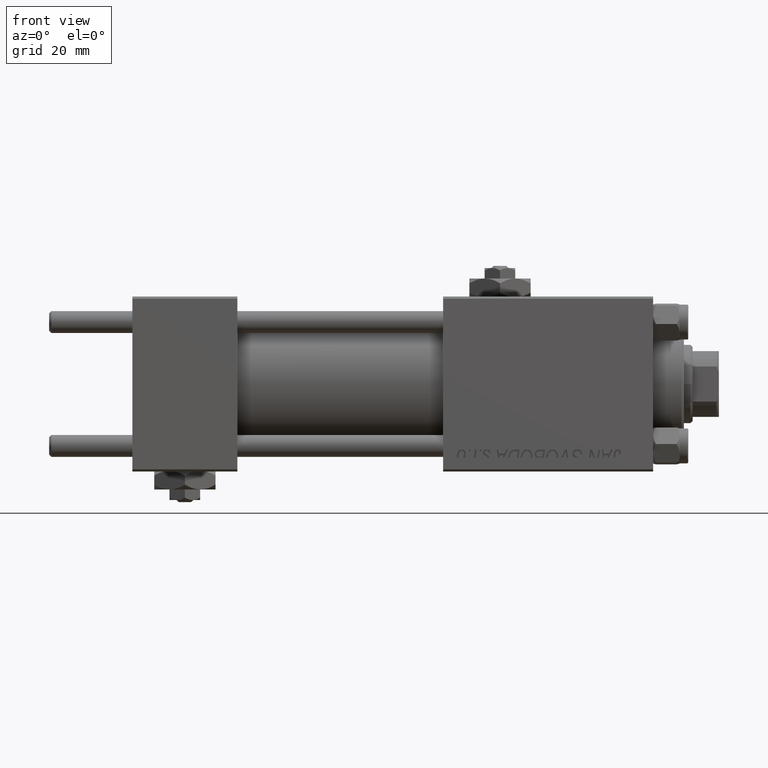
[diagram: clean part render]
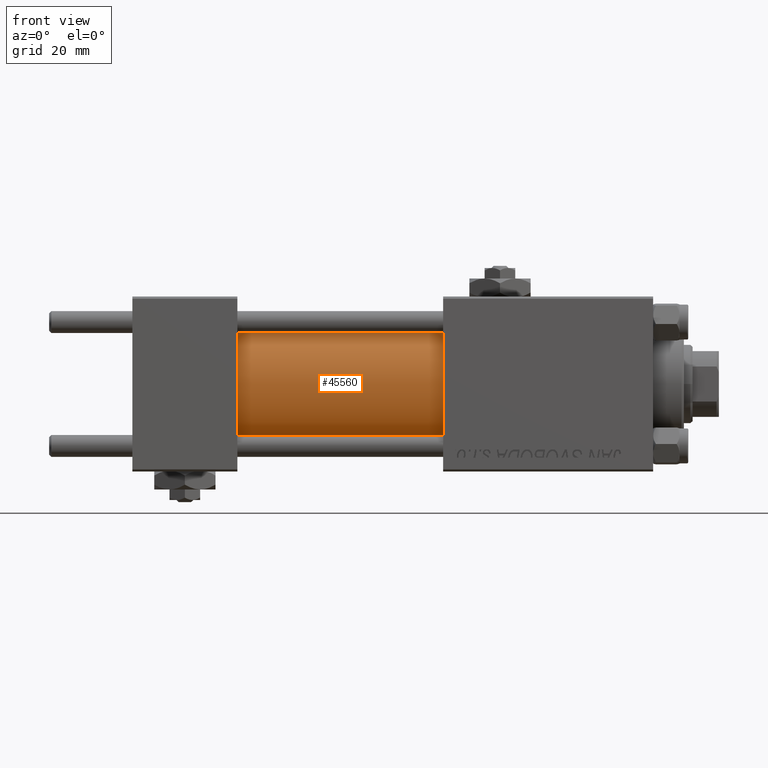
[diagram: same view with one face highlighted and labeled with its STEP entity id]
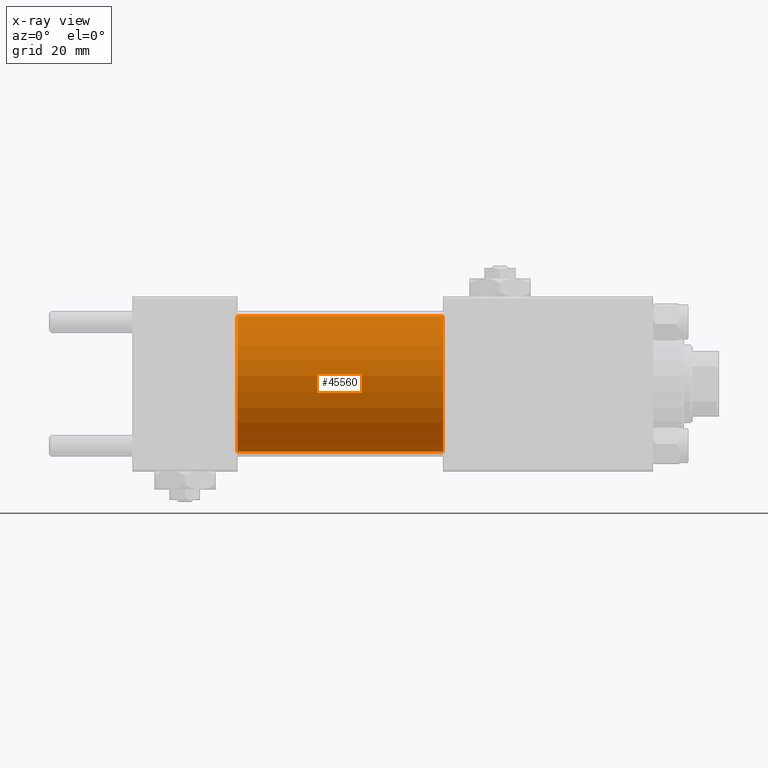
[diagram: x-ray of the same camera — body ghosted, the highlighted face saturated]
A machine part, front view. The second image highlights one B-rep face of the part: STEP entity #45560.
The next image is the same camera in x-ray: the body ghosted, the highlighted face saturated — about 0% of this face is hidden behind the body in this view.
In plain terms, the highlighted cylindrical surface (partial cylindrical patch) has radius 15.5 mm, axis along (-1, -0, -0).
Its self-contained STEP definition (entity closure, byte-faithful):
#355 = VERTEX_POINT ( 'NONE', #8654 ) ;
#4490 = CARTESIAN_POINT ( 'NONE',  ( 71.00000000000001421, 0.000000000000000000, 15.50000000000000000 ) ) ;
#8654 = CARTESIAN_POINT ( 'NONE',  ( 24.00000000000000000, 0.000000000000000000, 15.50000000000000000 ) ) ;
#10628 = DIRECTION ( 'NONE',  ( -1.000000000000000000, -0.000000000000000000, -0.000000000000000000 ) ) ;
#10916 = EDGE_CURVE ( 'NONE', #355, #48154, #48303, .T. ) ;
#11502 = ORIENTED_EDGE ( 'NONE', *, *, #10916, .T. ) ;
#13120 = CARTESIAN_POINT ( 'NONE',  ( 71.00000000000001421, 1.898202538678397557E-15, -15.50000000000000000 ) ) ;
#13175 = DIRECTION ( 'NONE',  ( -1.000000000000000000, -0.000000000000000000, -0.000000000000000000 ) ) ;
#14039 = VECTOR ( 'NONE', #10628, 1000.000000000000000 ) ;
#14061 = LINE ( 'NONE', #30604, #14039 ) ;
#16384 = DIRECTION ( 'NONE',  ( -1.000000000000000000, -0.000000000000000000, -0.000000000000000000 ) ) ;
#16867 = CARTESIAN_POINT ( 'NONE',  ( 71.00000000000001421, 0.000000000000000000, 0.000000000000000000 ) ) ;
#17345 = AXIS2_PLACEMENT_3D ( 'NONE', #16867, #13175, #45191 ) ;
#19839 = AXIS2_PLACEMENT_3D ( 'NONE', #29384, #21493, #28871 ) ;
#20323 = LINE ( 'NONE', #36321, #26723 ) ;
#21493 = DIRECTION ( 'NONE',  ( 1.000000000000000000, 0.000000000000000000, 0.000000000000000000 ) ) ;
#22609 = EDGE_CURVE ( 'NONE', #50276, #31149, #28512, .T. ) ;
#22862 = CARTESIAN_POINT ( 'NONE',  ( 24.00000000000000000, 1.898202538678397557E-15, -15.50000000000000000 ) ) ;
#26723 = VECTOR ( 'NONE', #16384, 1000.000000000000000 ) ;
#27182 = DIRECTION ( 'NONE',  ( 1.000000000000000000, 0.000000000000000000, 0.000000000000000000 ) ) ;
#28512 = CIRCLE ( 'NONE', #28556, 15.50000000000000000 ) ;
#28556 = AXIS2_PLACEMENT_3D ( 'NONE', #43439, #27182, #38721 ) ;
#28698 = CYLINDRICAL_SURFACE ( 'NONE', #17345, 15.50000000000000000 ) ;
#28871 = DIRECTION ( 'NONE',  ( 0.000000000000000000, 0.000000000000000000, 1.000000000000000000 ) ) ;
#29384 = CARTESIAN_POINT ( 'NONE',  ( 24.00000000000000000, 0.000000000000000000, 0.000000000000000000 ) ) ;
#30160 = ORIENTED_EDGE ( 'NONE', *, *, #22609, .F. ) ;
#30604 = CARTESIAN_POINT ( 'NONE',  ( 71.00000000000001421, 0.000000000000000000, 15.50000000000000000 ) ) ;
#31149 = VERTEX_POINT ( 'NONE', #13120 ) ;
#34507 = EDGE_LOOP ( 'NONE', ( #34727, #30160, #37223, #11502 ) ) ;
#34727 = ORIENTED_EDGE ( 'NONE', *, *, #50125, .F. ) ;
#36321 = CARTESIAN_POINT ( 'NONE',  ( 71.00000000000001421, 1.898202538678397557E-15, -15.50000000000000000 ) ) ;
#37223 = ORIENTED_EDGE ( 'NONE', *, *, #47610, .T. ) ;
#38721 = DIRECTION ( 'NONE',  ( 0.000000000000000000, 0.000000000000000000, -1.000000000000000000 ) ) ;
#41772 = FACE_OUTER_BOUND ( 'NONE', #34507, .T. ) ;
#43439 = CARTESIAN_POINT ( 'NONE',  ( 71.00000000000001421, 0.000000000000000000, 0.000000000000000000 ) ) ;
#45191 = DIRECTION ( 'NONE',  ( 0.000000000000000000, 0.000000000000000000, 1.000000000000000000 ) ) ;
#45560 = ADVANCED_FACE ( 'NONE', ( #41772 ), #28698, .T. ) ;
#47610 = EDGE_CURVE ( 'NONE', #50276, #355, #14061, .T. ) ;
#48154 = VERTEX_POINT ( 'NONE', #22862 ) ;
#48303 = CIRCLE ( 'NONE', #19839, 15.50000000000000000 ) ;
#50125 = EDGE_CURVE ( 'NONE', #31149, #48154, #20323, .T. ) ;
#50276 = VERTEX_POINT ( 'NONE', #4490 ) ;